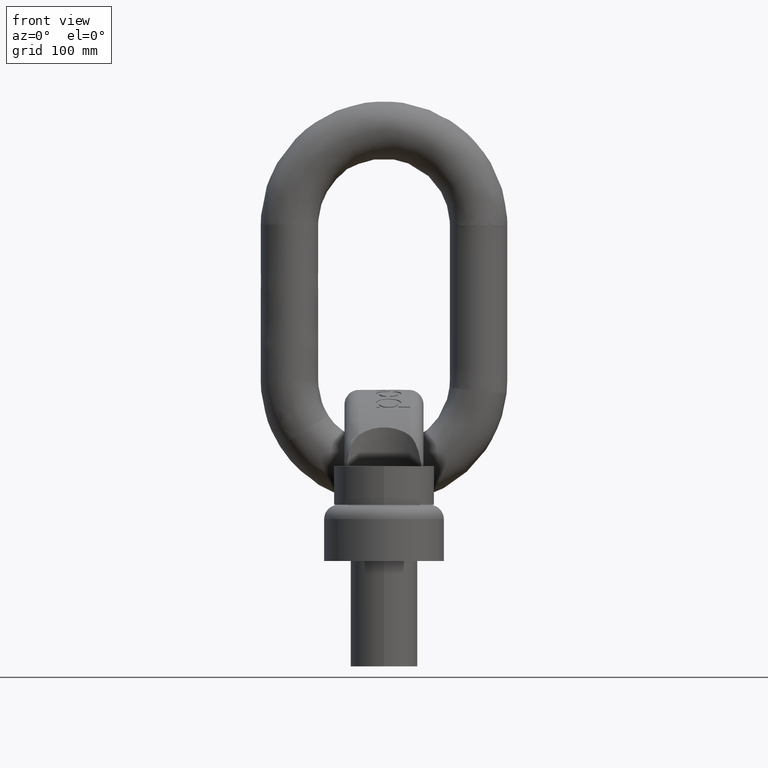
[diagram: clean part render]
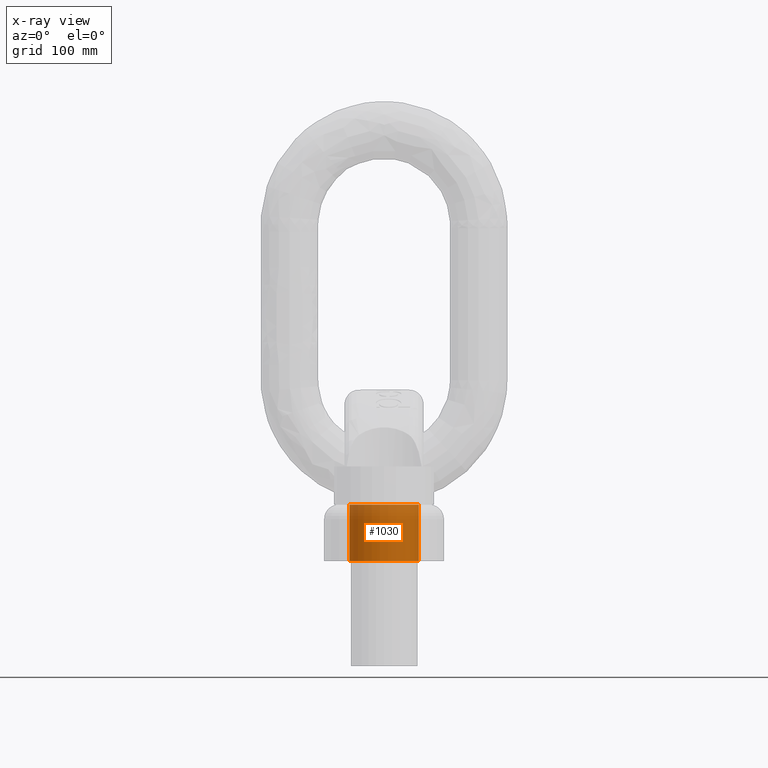
[diagram: x-ray — body ghosted, one internal face saturated and labeled with its STEP entity id]
A machine part, front view, then the same camera in x-ray: the body is ghosted and one INTERNAL B-rep face — a face not visible from any outside direction — is saturated and labeled: STEP entity #1030.
In plain terms, the highlighted cylindrical surface (bore or boss wall) has radius 29 mm, axis along (0, 0, 1).
Its self-contained STEP definition (entity closure, byte-faithful):
#1030=ADVANCED_FACE('',(#1187,#1188),#1157,.F.);
#1157=CYLINDRICAL_SURFACE('',#3631,29.);
#1187=FACE_BOUND('',#1288,.T.);
#1188=FACE_BOUND('',#1289,.T.);
#1288=EDGE_LOOP('',(#2299));
#1289=EDGE_LOOP('',(#2300));
#2299=ORIENTED_EDGE('',*,*,#3179,.T.);
#2300=ORIENTED_EDGE('',*,*,#3187,.F.);
#2895=VERTEX_POINT('',#5111);
#2898=VERTEX_POINT('',#5125);
#3179=EDGE_CURVE('',#2895,#2895,#3463,.T.);
#3187=EDGE_CURVE('',#2898,#2898,#3469,.T.);
#3463=CIRCLE('',#3579,29.);
#3469=CIRCLE('',#3588,29.);
#3579=AXIS2_PLACEMENT_3D('',#5110,#3887,#3888);
#3588=AXIS2_PLACEMENT_3D('',#5124,#3907,#3908);
#3631=AXIS2_PLACEMENT_3D('',#5797,#4000,#4001);
#3887=DIRECTION('',(0.,0.,1.));
#3888=DIRECTION('',(1.,0.,0.));
#3907=DIRECTION('',(0.,0.,1.));
#3908=DIRECTION('',(1.,0.,0.));
#4000=DIRECTION('',(0.,0.,1.));
#4001=DIRECTION('',(1.,0.,0.));
#5110=CARTESIAN_POINT('',(0.,115.,46.9999999999999));
#5111=CARTESIAN_POINT('',(29.,115.,46.9999999999999));
#5124=CARTESIAN_POINT('',(0.,115.,0.));
#5125=CARTESIAN_POINT('',(29.,115.,0.));
#5797=CARTESIAN_POINT('',(0.,115.,-4.7));